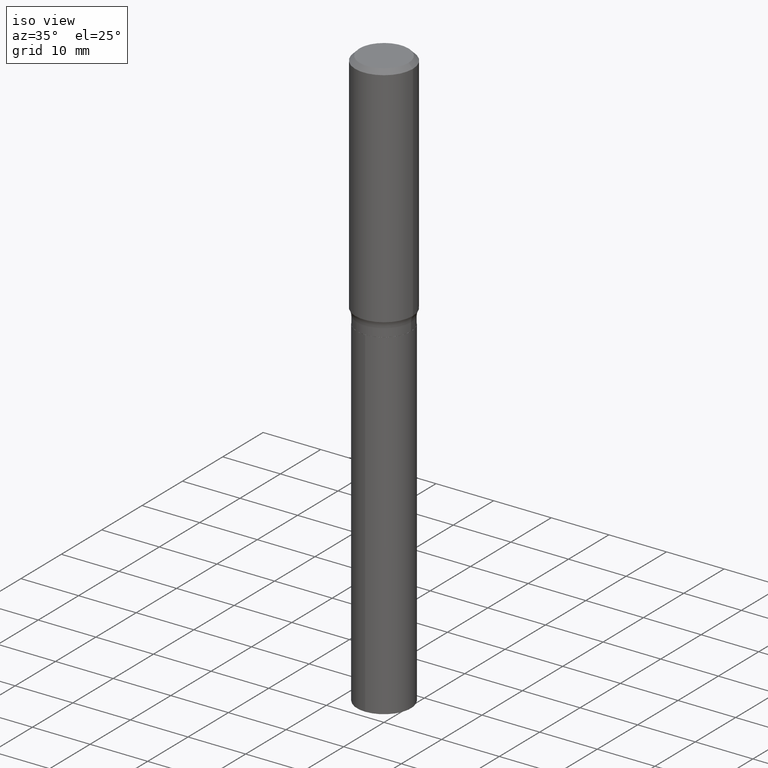
[diagram: clean part render]
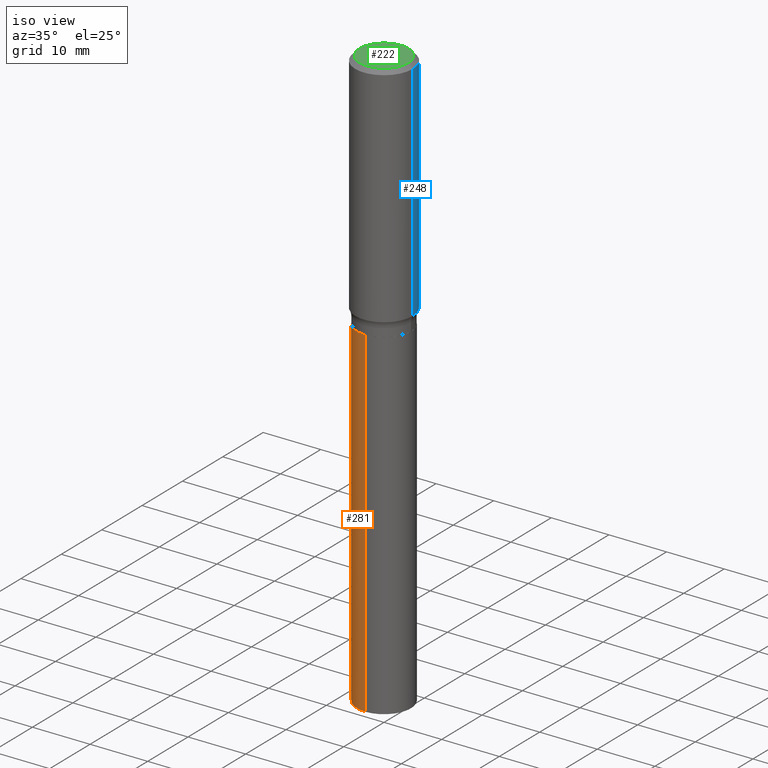
[diagram: same view with three faces highlighted in distinct colors, each labeled with its STEP entity id]
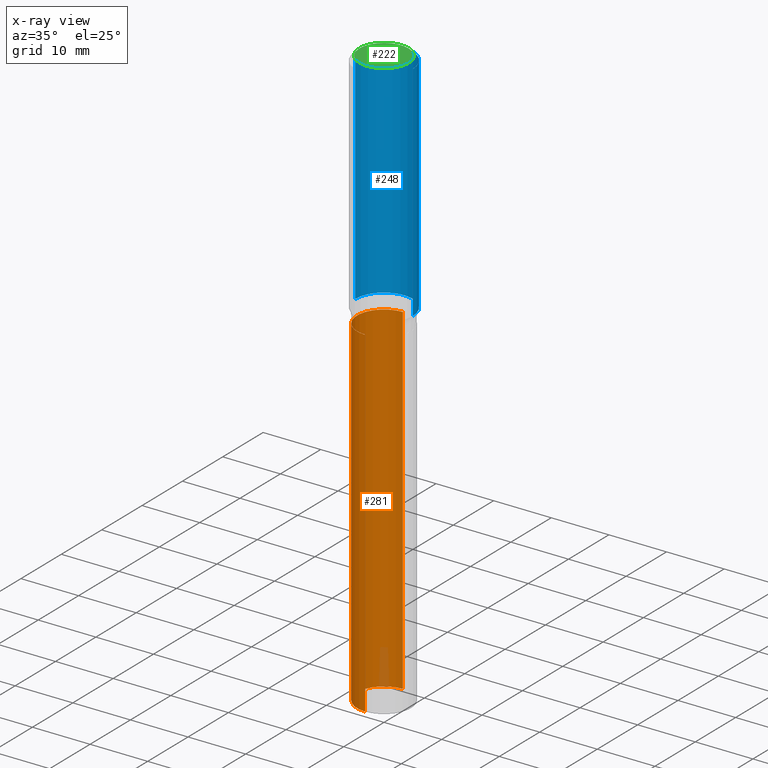
[diagram: x-ray of the same camera — body ghosted, the three highlighted faces saturated]
A machine part, iso view with three faces highlighted in distinct colors.
The next image is the same camera in x-ray (body ghosted, the three faces saturated) — at least one of them is partly hidden behind the body in this view.
Their STEP definitions:

[orange] entity #281 — the highlighted cylindrical surface (edge-blend (fillet) strip) has radius 4.6736 mm, axis along (-0, 0, 1).
#34 = FACE_OUTER_BOUND ( 'NONE', #145, .T. ) ;
#37 = CARTESIAN_POINT ( 'NONE',  ( 1.307398633798681744E-15, 0.1839999999999861469, -3.980659174446332660 ) ) ;
#68 = CARTESIAN_POINT ( 'NONE',  ( 4.043338124146503856E-29, -5.772815245643255193E-15, -1.653399999999999537 ) ) ;
#109 = CIRCLE ( 'NONE', #294, 0.1839999999999999969 ) ;
#113 = CARTESIAN_POINT ( 'NONE',  ( -1.284865132694232346E-15, -0.1840000000000057701, -1.653399999999999093 ) ) ;
#118 = DIRECTION ( 'NONE',  ( -2.445395198468639105E-29, 3.491586749282660968E-15, 1.000000000000000000 ) ) ;
#126 = VERTEX_POINT ( 'NONE', #135 ) ;
#132 = AXIS2_PLACEMENT_3D ( 'NONE', #258, #310, #151 ) ;
#133 = EDGE_CURVE ( 'NONE', #126, #339, #449, .T. ) ;
#135 = CARTESIAN_POINT ( 'NONE',  ( 1.307398633798681744E-15, 0.1839999999999941960, -1.653400000000000203 ) ) ;
#145 = EDGE_LOOP ( 'NONE', ( #431, #238, #380, #402 ) ) ;
#151 = DIRECTION ( 'NONE',  ( -6.982962677686265133E-15, -1.000000000000000000, 2.969399993113329585E-15 ) ) ;
#169 = VERTEX_POINT ( 'NONE', #212 ) ;
#212 = CARTESIAN_POINT ( 'NONE',  ( -1.284865132694176337E-15, -0.1840000000000139579, -3.980659174446331772 ) ) ;
#217 = VECTOR ( 'NONE', #118, 39.37007874015748143 ) ;
#221 = CARTESIAN_POINT ( 'NONE',  ( 1.307398633798624552E-15, 0.1839999999999942237, -1.653400000000000203 ) ) ;
#238 = ORIENTED_EDGE ( 'NONE', *, *, #334, .T. ) ;
#254 = DIRECTION ( 'NONE',  ( -6.982962677686265133E-15, -1.000000000000000000, 2.969399993113329585E-15 ) ) ;
#258 = CARTESIAN_POINT ( 'NONE',  ( 4.043338124146503856E-29, -5.772815245643255193E-15, -1.653399999999999537 ) ) ;
#263 = VERTEX_POINT ( 'NONE', #37 ) ;
#265 = CYLINDRICAL_SURFACE ( 'NONE', #132, 0.1839999999999999969 ) ;
#274 = EDGE_CURVE ( 'NONE', #169, #339, #418, .T. ) ;
#281 = ADVANCED_FACE ( 'NONE', ( #34 ), #265, .T. ) ;
#294 = AXIS2_PLACEMENT_3D ( 'NONE', #306, #460, #382 ) ;
#306 = CARTESIAN_POINT ( 'NONE',  ( 9.734406534929655028E-29, -1.389864254128657465E-14, -3.980659174446332216 ) ) ;
#310 = DIRECTION ( 'NONE',  ( -2.445395198468639385E-29, 3.491586749282660968E-15, 1.000000000000000000 ) ) ;
#318 = EDGE_CURVE ( 'NONE', #263, #126, #458, .T. ) ;
#334 = EDGE_CURVE ( 'NONE', #263, #169, #109, .T. ) ;
#339 = VERTEX_POINT ( 'NONE', #113 ) ;
#372 = DIRECTION ( 'NONE',  ( -2.445395198468639385E-29, 3.491586749282660968E-15, 1.000000000000000000 ) ) ;
#376 = CARTESIAN_POINT ( 'NONE',  ( -1.284865132694232346E-15, -0.1840000000000057701, -1.653399999999999093 ) ) ;
#379 = DIRECTION ( 'NONE',  ( -2.445395198468639105E-29, 3.491586749282660968E-15, 1.000000000000000000 ) ) ;
#380 = ORIENTED_EDGE ( 'NONE', *, *, #274, .T. ) ;
#382 = DIRECTION ( 'NONE',  ( -6.982962677686265133E-15, -1.000000000000000000, 2.969399993113329585E-15 ) ) ;
#402 = ORIENTED_EDGE ( 'NONE', *, *, #133, .F. ) ;
#408 = AXIS2_PLACEMENT_3D ( 'NONE', #68, #372, #254 ) ;
#418 = LINE ( 'NONE', #376, #457 ) ;
#431 = ORIENTED_EDGE ( 'NONE', *, *, #318, .F. ) ;
#449 = CIRCLE ( 'NONE', #408, 0.1839999999999999969 ) ;
#457 = VECTOR ( 'NONE', #379, 39.37007874015748143 ) ;
#458 = LINE ( 'NONE', #221, #217 ) ;
#460 = DIRECTION ( 'NONE',  ( -2.445395198468639385E-29, 3.491586749282660968E-15, 1.000000000000000000 ) ) ;

[blue] entity #248 — the highlighted cylindrical surface (edge-blend (fillet) strip) has radius 5 mm, axis along (-0, 0, 1).
#2 = VERTEX_POINT ( 'NONE', #128 ) ;
#11 = ORIENTED_EDGE ( 'NONE', *, *, #290, .T. ) ;
#14 = ORIENTED_EDGE ( 'NONE', *, *, #85, .F. ) ;
#23 = CARTESIAN_POINT ( 'NONE',  ( 0.1968500000000001915, -6.803538488138588411E-15, -1.554910869675405705 ) ) ;
#35 = DIRECTION ( 'NONE',  ( -2.445468806185136877E-29, 3.491481338843145188E-15, 1.000000000000000000 ) ) ;
#40 = DIRECTION ( 'NONE',  ( 1.000000000000000000, -6.982962677686265922E-15, 0.000000000000000000 ) ) ;
#77 = CIRCLE ( 'NONE', #86, 0.1968500000000000527 ) ;
#85 = EDGE_CURVE ( 'NONE', #355, #383, #77, .T. ) ;
#86 = AXIS2_PLACEMENT_3D ( 'NONE', #233, #390, #475 ) ;
#96 = VERTEX_POINT ( 'NONE', #23 ) ;
#108 = ORIENTED_EDGE ( 'NONE', *, *, #378, .T. ) ;
#110 = LINE ( 'NONE', #262, #392 ) ;
#115 = CARTESIAN_POINT ( 'NONE',  ( -0.1968500000000000527, -1.367315124790610273E-15, -0.02952750000000018554 ) ) ;
#128 = CARTESIAN_POINT ( 'NONE',  ( -0.1968500000000001915, -4.030238909692286649E-15, -1.554910869675405705 ) ) ;
#131 = FACE_OUTER_BOUND ( 'NONE', #268, .T. ) ;
#144 = CARTESIAN_POINT ( 'NONE',  ( 3.802486028189407095E-29, -5.428942285036045225E-15, -1.554910869675405705 ) ) ;
#160 = ORIENTED_EDGE ( 'NONE', *, *, #356, .F. ) ;
#173 = AXIS2_PLACEMENT_3D ( 'NONE', #367, #292, #448 ) ;
#224 = CARTESIAN_POINT ( 'NONE',  ( 0.1968500000000000527, -1.477690918335233688E-15, -0.02952750000000018554 ) ) ;
#228 = LINE ( 'NONE', #337, #359 ) ;
#233 = CARTESIAN_POINT ( 'NONE',  ( 7.220858017463207734E-31, -1.030947152326916363E-16, -0.02952750000000018554 ) ) ;
#248 = ADVANCED_FACE ( 'NONE', ( #131 ), #407, .T. ) ;
#262 = CARTESIAN_POINT ( 'NONE',  ( -0.1968500000000001082, 1.398703375343757985E-15, -9.682923725166787881E-30 ) ) ;
#268 = EDGE_LOOP ( 'NONE', ( #108, #11, #14, #160 ) ) ;
#285 = AXIS2_PLACEMENT_3D ( 'NONE', #144, #385, #40 ) ;
#290 = EDGE_CURVE ( 'NONE', #2, #383, #110, .T. ) ;
#292 = DIRECTION ( 'NONE',  ( -2.445468806185136597E-29, 3.491481338843145583E-15, 1.000000000000000000 ) ) ;
#299 = DIRECTION ( 'NONE',  ( -2.445468806185136877E-29, 3.491481338843145188E-15, 1.000000000000000000 ) ) ;
#337 = CARTESIAN_POINT ( 'NONE',  ( 0.1968500000000001082, -1.374596203102542397E-15, 9.598753983154305062E-30 ) ) ;
#355 = VERTEX_POINT ( 'NONE', #224 ) ;
#356 = EDGE_CURVE ( 'NONE', #96, #355, #228, .T. ) ;
#359 = VECTOR ( 'NONE', #299, 39.37007874015748143 ) ;
#367 = CARTESIAN_POINT ( 'NONE',  ( 0.000000000000000000, 0.000000000000000000, 0.000000000000000000 ) ) ;
#378 = EDGE_CURVE ( 'NONE', #96, #2, #480, .T. ) ;
#383 = VERTEX_POINT ( 'NONE', #115 ) ;
#385 = DIRECTION ( 'NONE',  ( -2.445468806185136597E-29, 3.491481338843145583E-15, 1.000000000000000000 ) ) ;
#390 = DIRECTION ( 'NONE',  ( -2.445468806185136597E-29, 3.491481338843145583E-15, 1.000000000000000000 ) ) ;
#392 = VECTOR ( 'NONE', #35, 39.37007874015748143 ) ;
#407 = CYLINDRICAL_SURFACE ( 'NONE', #173, 0.1968500000000001082 ) ;
#448 = DIRECTION ( 'NONE',  ( 1.000000000000000000, -6.982962677686266711E-15, 4.876176775795935793E-29 ) ) ;
#475 = DIRECTION ( 'NONE',  ( 1.000000000000000000, -6.982962677686266711E-15, 0.000000000000000000 ) ) ;
#480 = CIRCLE ( 'NONE', #285, 0.1968500000000002192 ) ;

[green] entity #222 — the highlighted planar face has unit normal (0, -0, -1).
#26 = CIRCLE ( 'NONE', #165, 0.1673224999999999851 ) ;
#46 = EDGE_CURVE ( 'NONE', #80, #419, #171, .T. ) ;
#54 = ORIENTED_EDGE ( 'NONE', *, *, #69, .T. ) ;
#69 = EDGE_CURVE ( 'NONE', #419, #80, #26, .T. ) ;
#80 = VERTEX_POINT ( 'NONE', #360 ) ;
#121 = CARTESIAN_POINT ( 'NONE',  ( -1.001697619218021790E-46, 1.430158722866389718E-32, 4.096137381448108366E-18 ) ) ;
#165 = AXIS2_PLACEMENT_3D ( 'NONE', #435, #440, #198 ) ;
#171 = CIRCLE ( 'NONE', #471, 0.1673224999999999851 ) ;
#190 = EDGE_LOOP ( 'NONE', ( #54, #284 ) ) ;
#198 = DIRECTION ( 'NONE',  ( 1.000000000000000000, -6.982962677686267499E-15, 4.876294436782262290E-29 ) ) ;
#215 = PLANE ( 'NONE',  #329 ) ;
#222 = ADVANCED_FACE ( 'NONE', ( #330 ), #215, .F. ) ;
#245 = DIRECTION ( 'NONE',  ( -1.000000000000000000, 6.982962677686265922E-15, -4.876176775795935793E-29 ) ) ;
#246 = CARTESIAN_POINT ( 'NONE',  ( -5.008488096090108951E-47, 7.150793614331948590E-33, 2.048068690724054183E-18 ) ) ;
#272 = CARTESIAN_POINT ( 'NONE',  ( -0.1673224999999999851, 1.219954130253505460E-15, 4.096137381439757534E-18 ) ) ;
#284 = ORIENTED_EDGE ( 'NONE', *, *, #46, .T. ) ;
#287 = DIRECTION ( 'NONE',  ( 2.438088387897960049E-29, -3.491481338843145188E-15, -1.000000000000000000 ) ) ;
#329 = AXIS2_PLACEMENT_3D ( 'NONE', #246, #287, #245 ) ;
#330 = FACE_OUTER_BOUND ( 'NONE', #190, .T. ) ;
#360 = CARTESIAN_POINT ( 'NONE',  ( 0.1673224999999999851, -1.300749711163072594E-15, 4.096137381456741925E-18 ) ) ;
#394 = DIRECTION ( 'NONE',  ( 1.000000000000000000, -6.982962677686267499E-15, 4.876294436782262290E-29 ) ) ;
#397 = DIRECTION ( 'NONE',  ( -2.445468806185136597E-29, 3.491481338843145583E-15, 1.000000000000000000 ) ) ;
#419 = VERTEX_POINT ( 'NONE', #272 ) ;
#435 = CARTESIAN_POINT ( 'NONE',  ( -1.001697619218021790E-46, 1.430158722866389718E-32, 4.096137381448108366E-18 ) ) ;
#440 = DIRECTION ( 'NONE',  ( -2.445468806185136597E-29, 3.491481338843145583E-15, 1.000000000000000000 ) ) ;
#471 = AXIS2_PLACEMENT_3D ( 'NONE', #121, #397, #394 ) ;